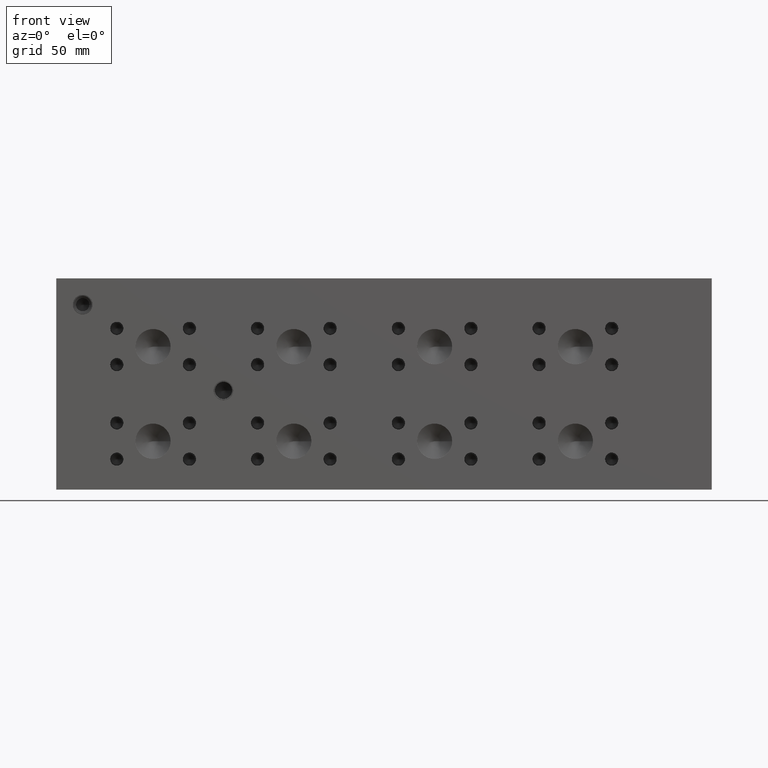
[diagram: clean part render]
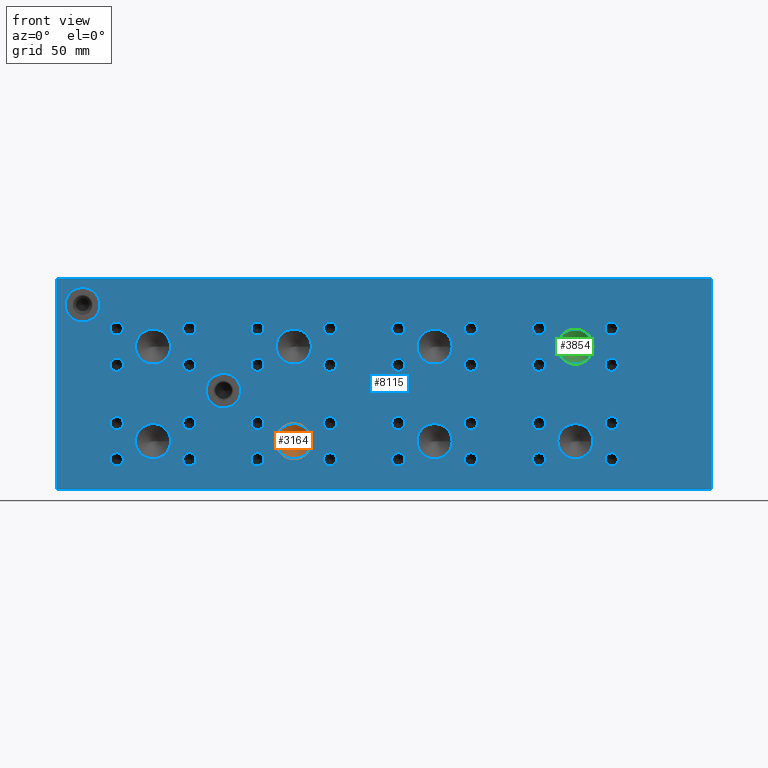
[diagram: same view with three faces highlighted in distinct colors, each labeled with its STEP entity id]
A machine part, front view with three faces highlighted in distinct colors.
Their STEP definitions:

[orange] entity #3164 — the highlighted conical surface has half-angle 60 deg.
#3148=CARTESIAN_POINT('',(171.44999999999999,10.998522600000001,34.924999999999997));
#3149=DIRECTION('',(0.0,-1.0,0.0));
#3150=DIRECTION('',(1.0,0.0,0.0));
#3151=AXIS2_PLACEMENT_3D('',#3148,#3149,#3150);
#3152=CONICAL_SURFACE('',#3151,6.350000000000016,60.000000063301457);
#3153=CARTESIAN_POINT('',(184.14999999999998,7.332348400000001,34.924999999999997));
#3154=VERTEX_POINT('',#3153);
#3155=CARTESIAN_POINT('',(171.44999999999999,7.332348400000001,34.924999999999997));
#3156=DIRECTION('',(0.0,-1.0,0.0));
#3157=DIRECTION('',(1.0,0.0,0.0));
#3158=AXIS2_PLACEMENT_3D('',#3155,#3156,#3157);
#3159=CIRCLE('',#3158,12.699999999999996);
#3160=EDGE_CURVE('',#3154,#3154,#3159,.T.);
#3161=ORIENTED_EDGE('',*,*,#3160,.T.);
#3162=EDGE_LOOP('',(#3161));
#3163=FACE_OUTER_BOUND('',#3162,.T.);
#3164=ADVANCED_FACE('',(#3163),#3152,.F.);

[blue] entity #8115 — the highlighted planar face has unit normal (0, -1, 0).
#1938=CARTESIAN_POINT('',(133.14680000000001,0.0,71.424800000000005));
#1939=VERTEX_POINT('',#1938);
#1940=CARTESIAN_POINT('',(120.65000000000001,0.0,71.424800000000005));
#1941=DIRECTION('',(0.0,1.0,0.0));
#1942=DIRECTION('',(1.0,0.0,0.0));
#1943=AXIS2_PLACEMENT_3D('',#1940,#1941,#1942);
#1944=CIRCLE('',#1943,12.496799999999997);
#1945=EDGE_CURVE('',#1939,#1939,#1944,.T.);
#2135=CARTESIAN_POINT('',(31.546800000000005,0.0,133.35000000000002));
#2136=VERTEX_POINT('',#2135);
#2137=CARTESIAN_POINT('',(19.050000000000004,0.0,133.35000000000002));
#2138=DIRECTION('',(0.0,1.0,0.0));
#2139=DIRECTION('',(1.0,0.0,0.0));
#2140=AXIS2_PLACEMENT_3D('',#2137,#2138,#2139);
#2141=CIRCLE('',#2140,12.4968);
#2142=EDGE_CURVE('',#2136,#2136,#2141,.T.);
#2212=CARTESIAN_POINT('',(405.59990000000005,0.0,21.844000000000001));
#2213=VERTEX_POINT('',#2212);
#2214=CARTESIAN_POINT('',(400.83740000000006,0.0,21.844000000000001));
#2215=DIRECTION('',(0.0,1.0,0.0));
#2216=DIRECTION('',(1.0,0.0,0.0));
#2217=AXIS2_PLACEMENT_3D('',#2214,#2215,#2216);
#2218=CIRCLE('',#2217,4.762500000000003);
#2219=EDGE_CURVE('',#2213,#2213,#2218,.T.);
#2289=CARTESIAN_POINT('',(405.59990000000005,0.0,48.006));
#2290=VERTEX_POINT('',#2289);
#2291=CARTESIAN_POINT('',(400.83740000000006,0.0,48.006));
#2292=DIRECTION('',(0.0,1.0,0.0));
#2293=DIRECTION('',(1.0,0.0,0.0));
#2294=AXIS2_PLACEMENT_3D('',#2291,#2292,#2293);
#2295=CIRCLE('',#2294,4.762500000000003);
#2296=EDGE_CURVE('',#2290,#2290,#2295,.T.);
#2366=CARTESIAN_POINT('',(353.2251,0.0,48.006));
#2367=VERTEX_POINT('',#2366);
#2368=CARTESIAN_POINT('',(348.46260000000001,0.0,48.006));
#2369=DIRECTION('',(0.0,1.0,0.0));
#2370=DIRECTION('',(1.0,0.0,0.0));
#2371=AXIS2_PLACEMENT_3D('',#2368,#2369,#2370);
#2372=CIRCLE('',#2371,4.762500000000003);
#2373=EDGE_CURVE('',#2367,#2367,#2372,.T.);
#2443=CARTESIAN_POINT('',(353.2251,0.0,21.844000000000001));
#2444=VERTEX_POINT('',#2443);
#2445=CARTESIAN_POINT('',(348.46260000000001,0.0,21.844000000000001));
#2446=DIRECTION('',(0.0,1.0,0.0));
#2447=DIRECTION('',(1.0,0.0,0.0));
#2448=AXIS2_PLACEMENT_3D('',#2445,#2446,#2447);
#2449=CIRCLE('',#2448,4.762500000000003);
#2450=EDGE_CURVE('',#2444,#2444,#2449,.T.);
#2480=CARTESIAN_POINT('',(387.35000000000002,0.0,34.924999999999997));
#2481=VERTEX_POINT('',#2480);
#2482=CARTESIAN_POINT('',(374.64999999999998,0.0,34.924999999999997));
#2483=DIRECTION('',(0.0,1.0,0.0));
#2484=DIRECTION('',(1.0,0.0,0.0));
#2485=AXIS2_PLACEMENT_3D('',#2482,#2483,#2484);
#2486=CIRCLE('',#2485,12.700000000000031);
#2487=EDGE_CURVE('',#2481,#2481,#2486,.T.);
#2557=CARTESIAN_POINT('',(303.99989999999997,0.0,21.844000000000001));
#2558=VERTEX_POINT('',#2557);
#2559=CARTESIAN_POINT('',(299.23739999999998,0.0,21.844000000000001));
#2560=DIRECTION('',(0.0,1.0,0.0));
#2561=DIRECTION('',(1.0,0.0,0.0));
#2562=AXIS2_PLACEMENT_3D('',#2559,#2560,#2561);
#2563=CIRCLE('',#2562,4.762500000000003);
#2564=EDGE_CURVE('',#2558,#2558,#2563,.T.);
#2634=CARTESIAN_POINT('',(303.99989999999997,0.0,48.006));
#2635=VERTEX_POINT('',#2634);
#2636=CARTESIAN_POINT('',(299.23739999999998,0.0,48.006));
#2637=DIRECTION('',(0.0,1.0,0.0));
#2638=DIRECTION('',(1.0,0.0,0.0));
#2639=AXIS2_PLACEMENT_3D('',#2636,#2637,#2638);
#2640=CIRCLE('',#2639,4.762500000000003);
#2641=EDGE_CURVE('',#2635,#2635,#2640,.T.);
#2711=CARTESIAN_POINT('',(251.6251,0.0,48.006));
#2712=VERTEX_POINT('',#2711);
#2713=CARTESIAN_POINT('',(246.86260000000001,0.0,48.006));
#2714=DIRECTION('',(0.0,1.0,0.0));
#2715=DIRECTION('',(1.0,0.0,0.0));
#2716=AXIS2_PLACEMENT_3D('',#2713,#2714,#2715);
#2717=CIRCLE('',#2716,4.762500000000003);
#2718=EDGE_CURVE('',#2712,#2712,#2717,.T.);
#2788=CARTESIAN_POINT('',(251.6251,0.0,21.844000000000001));
#2789=VERTEX_POINT('',#2788);
#2790=CARTESIAN_POINT('',(246.86260000000001,0.0,21.844000000000001));
#2791=DIRECTION('',(0.0,1.0,0.0));
#2792=DIRECTION('',(1.0,0.0,0.0));
#2793=AXIS2_PLACEMENT_3D('',#2790,#2791,#2792);
#2794=CIRCLE('',#2793,4.762500000000003);
#2795=EDGE_CURVE('',#2789,#2789,#2794,.T.);
#2825=CARTESIAN_POINT('',(285.75,0.0,34.924999999999997));
#2826=VERTEX_POINT('',#2825);
#2827=CARTESIAN_POINT('',(273.05000000000001,0.0,34.924999999999997));
#2828=DIRECTION('',(0.0,1.0,0.0));
#2829=DIRECTION('',(1.0,0.0,0.0));
#2830=AXIS2_PLACEMENT_3D('',#2827,#2828,#2829);
#2831=CIRCLE('',#2830,12.699999999999996);
#2832=EDGE_CURVE('',#2826,#2826,#2831,.T.);
#2902=CARTESIAN_POINT('',(202.39990000000003,0.0,21.844000000000001));
#2903=VERTEX_POINT('',#2902);
#2904=CARTESIAN_POINT('',(197.63740000000001,0.0,21.844000000000001));
#2905=DIRECTION('',(0.0,1.0,0.0));
#2906=DIRECTION('',(1.0,0.0,0.0));
#2907=AXIS2_PLACEMENT_3D('',#2904,#2905,#2906);
#2908=CIRCLE('',#2907,4.762500000000003);
#2909=EDGE_CURVE('',#2903,#2903,#2908,.T.);
#2979=CARTESIAN_POINT('',(202.40498000000002,0.0,48.006));
#2980=VERTEX_POINT('',#2979);
#2981=CARTESIAN_POINT('',(197.64248000000003,0.0,48.006));
#2982=DIRECTION('',(0.0,1.0,0.0));
#2983=DIRECTION('',(1.0,0.0,0.0));
#2984=AXIS2_PLACEMENT_3D('',#2981,#2982,#2983);
#2985=CIRCLE('',#2984,4.762500000000003);
#2986=EDGE_CURVE('',#2980,#2980,#2985,.T.);
#3056=CARTESIAN_POINT('',(150.02510000000001,0.0,48.006));
#3057=VERTEX_POINT('',#3056);
#3058=CARTESIAN_POINT('',(145.26260000000002,0.0,48.006));
#3059=DIRECTION('',(0.0,1.0,0.0));
#3060=DIRECTION('',(1.0,0.0,0.0));
#3061=AXIS2_PLACEMENT_3D('',#3058,#3059,#3060);
#3062=CIRCLE('',#3061,4.762500000000003);
#3063=EDGE_CURVE('',#3057,#3057,#3062,.T.);
#3133=CARTESIAN_POINT('',(150.02002000000002,0.0,21.844000000000001));
#3134=VERTEX_POINT('',#3133);
#3135=CARTESIAN_POINT('',(145.25752,0.0,21.844000000000001));
#3136=DIRECTION('',(0.0,1.0,0.0));
#3137=DIRECTION('',(1.0,0.0,0.0));
#3138=AXIS2_PLACEMENT_3D('',#3135,#3136,#3137);
#3139=CIRCLE('',#3138,4.762500000000003);
#3140=EDGE_CURVE('',#3134,#3134,#3139,.T.);
#3170=CARTESIAN_POINT('',(184.14999999999998,0.0,34.924999999999997));
#3171=VERTEX_POINT('',#3170);
#3172=CARTESIAN_POINT('',(171.44999999999999,0.0,34.924999999999997));
#3173=DIRECTION('',(0.0,1.0,0.0));
#3174=DIRECTION('',(1.0,0.0,0.0));
#3175=AXIS2_PLACEMENT_3D('',#3172,#3173,#3174);
#3176=CIRCLE('',#3175,12.699999999999996);
#3177=EDGE_CURVE('',#3171,#3171,#3176,.T.);
#3247=CARTESIAN_POINT('',(100.79990000000002,0.0,21.844000000000001));
#3248=VERTEX_POINT('',#3247);
#3249=CARTESIAN_POINT('',(96.037400000000019,0.0,21.844000000000001));
#3250=DIRECTION('',(0.0,1.0,0.0));
#3251=DIRECTION('',(1.0,0.0,0.0));
#3252=AXIS2_PLACEMENT_3D('',#3249,#3250,#3251);
#3253=CIRCLE('',#3252,4.762500000000003);
#3254=EDGE_CURVE('',#3248,#3248,#3253,.T.);
#3324=CARTESIAN_POINT('',(100.80498,0.0,48.006));
#3325=VERTEX_POINT('',#3324);
#3326=CARTESIAN_POINT('',(96.042479999999998,0.0,48.006));
#3327=DIRECTION('',(0.0,1.0,0.0));
#3328=DIRECTION('',(1.0,0.0,0.0));
#3329=AXIS2_PLACEMENT_3D('',#3326,#3327,#3328);
#3330=CIRCLE('',#3329,4.762500000000003);
#3331=EDGE_CURVE('',#3325,#3325,#3330,.T.);
#3401=CARTESIAN_POINT('',(48.4251,0.0,48.006));
#3402=VERTEX_POINT('',#3401);
#3403=CARTESIAN_POINT('',(43.662599999999998,0.0,48.006));
#3404=DIRECTION('',(0.0,1.0,0.0));
#3405=DIRECTION('',(1.0,0.0,0.0));
#3406=AXIS2_PLACEMENT_3D('',#3403,#3404,#3405);
#3407=CIRCLE('',#3406,4.762500000000003);
#3408=EDGE_CURVE('',#3402,#3402,#3407,.T.);
#3478=CARTESIAN_POINT('',(48.420020000000001,0.0,21.844000000000001));
#3479=VERTEX_POINT('',#3478);
#3480=CARTESIAN_POINT('',(43.657519999999998,0.0,21.844000000000001));
#3481=DIRECTION('',(0.0,1.0,0.0));
#3482=DIRECTION('',(1.0,0.0,0.0));
#3483=AXIS2_PLACEMENT_3D('',#3480,#3481,#3482);
#3484=CIRCLE('',#3483,4.762500000000003);
#3485=EDGE_CURVE('',#3479,#3479,#3484,.T.);
#3515=CARTESIAN_POINT('',(82.549999999999983,0.0,34.924999999999997));
#3516=VERTEX_POINT('',#3515);
#3517=CARTESIAN_POINT('',(69.849999999999994,0.0,34.924999999999997));
#3518=DIRECTION('',(0.0,1.0,0.0));
#3519=DIRECTION('',(1.0,0.0,0.0));
#3520=AXIS2_PLACEMENT_3D('',#3517,#3518,#3519);
#3521=CIRCLE('',#3520,12.699999999999996);
#3522=EDGE_CURVE('',#3516,#3516,#3521,.T.);
#3592=CARTESIAN_POINT('',(405.59990000000005,0.0,90.093800000000002));
#3593=VERTEX_POINT('',#3592);
#3594=CARTESIAN_POINT('',(400.83740000000006,0.0,90.093800000000002));
#3595=DIRECTION('',(0.0,1.0,0.0));
#3596=DIRECTION('',(1.0,0.0,0.0));
#3597=AXIS2_PLACEMENT_3D('',#3594,#3595,#3596);
#3598=CIRCLE('',#3597,4.762500000000003);
#3599=EDGE_CURVE('',#3593,#3593,#3598,.T.);
#3669=CARTESIAN_POINT('',(405.59990000000005,0.0,116.25579999999999));
#3670=VERTEX_POINT('',#3669);
#3671=CARTESIAN_POINT('',(400.83740000000006,0.0,116.25579999999999));
#3672=DIRECTION('',(0.0,1.0,0.0));
#3673=DIRECTION('',(1.0,0.0,0.0));
#3674=AXIS2_PLACEMENT_3D('',#3671,#3672,#3673);
#3675=CIRCLE('',#3674,4.762500000000003);
#3676=EDGE_CURVE('',#3670,#3670,#3675,.T.);
#3746=CARTESIAN_POINT('',(353.2251,0.0,116.25579999999999));
#3747=VERTEX_POINT('',#3746);
#3748=CARTESIAN_POINT('',(348.46260000000001,0.0,116.25579999999999));
#3749=DIRECTION('',(0.0,1.0,0.0));
#3750=DIRECTION('',(1.0,0.0,0.0));
#3751=AXIS2_PLACEMENT_3D('',#3748,#3749,#3750);
#3752=CIRCLE('',#3751,4.762500000000003);
#3753=EDGE_CURVE('',#3747,#3747,#3752,.T.);
#3823=CARTESIAN_POINT('',(353.2251,0.0,90.093800000000002));
#3824=VERTEX_POINT('',#3823);
#3825=CARTESIAN_POINT('',(348.46260000000001,0.0,90.093800000000002));
#3826=DIRECTION('',(0.0,1.0,0.0));
#3827=DIRECTION('',(1.0,0.0,0.0));
#3828=AXIS2_PLACEMENT_3D('',#3825,#3826,#3827);
#3829=CIRCLE('',#3828,4.762500000000003);
#3830=EDGE_CURVE('',#3824,#3824,#3829,.T.);
#3860=CARTESIAN_POINT('',(387.35000000000002,0.0,103.17480000000002));
#3861=VERTEX_POINT('',#3860);
#3862=CARTESIAN_POINT('',(374.64999999999998,0.0,103.17480000000002));
#3863=DIRECTION('',(0.0,1.0,0.0));
#3864=DIRECTION('',(1.0,0.0,0.0));
#3865=AXIS2_PLACEMENT_3D('',#3862,#3863,#3864);
#3866=CIRCLE('',#3865,12.700000000000031);
#3867=EDGE_CURVE('',#3861,#3861,#3866,.T.);
#3937=CARTESIAN_POINT('',(303.99989999999997,0.0,90.093800000000002));
#3938=VERTEX_POINT('',#3937);
#3939=CARTESIAN_POINT('',(299.23739999999998,0.0,90.093800000000002));
#3940=DIRECTION('',(0.0,1.0,0.0));
#3941=DIRECTION('',(1.0,0.0,0.0));
#3942=AXIS2_PLACEMENT_3D('',#3939,#3940,#3941);
#3943=CIRCLE('',#3942,4.762500000000003);
#3944=EDGE_CURVE('',#3938,#3938,#3943,.T.);
#4014=CARTESIAN_POINT('',(303.99989999999997,0.0,116.25579999999999));
#4015=VERTEX_POINT('',#4014);
#4016=CARTESIAN_POINT('',(299.23739999999998,0.0,116.25579999999999));
#4017=DIRECTION('',(0.0,1.0,0.0));
#4018=DIRECTION('',(1.0,0.0,0.0));
#4019=AXIS2_PLACEMENT_3D('',#4016,#4017,#4018);
#4020=CIRCLE('',#4019,4.762500000000003);
#4021=EDGE_CURVE('',#4015,#4015,#4020,.T.);
#4091=CARTESIAN_POINT('',(251.6251,0.0,116.25579999999999));
#4092=VERTEX_POINT('',#4091);
#4093=CARTESIAN_POINT('',(246.86260000000001,0.0,116.25579999999999));
#4094=DIRECTION('',(0.0,1.0,0.0));
#4095=DIRECTION('',(1.0,0.0,0.0));
#4096=AXIS2_PLACEMENT_3D('',#4093,#4094,#4095);
#4097=CIRCLE('',#4096,4.762500000000003);
#4098=EDGE_CURVE('',#4092,#4092,#4097,.T.);
#4168=CARTESIAN_POINT('',(251.6251,0.0,90.093800000000002));
#4169=VERTEX_POINT('',#4168);
#4170=CARTESIAN_POINT('',(246.86260000000001,0.0,90.093800000000002));
#4171=DIRECTION('',(0.0,1.0,0.0));
#4172=DIRECTION('',(1.0,0.0,0.0));
#4173=AXIS2_PLACEMENT_3D('',#4170,#4171,#4172);
#4174=CIRCLE('',#4173,4.762500000000003);
#4175=EDGE_CURVE('',#4169,#4169,#4174,.T.);
#4205=CARTESIAN_POINT('',(285.75,0.0,103.17480000000002));
#4206=VERTEX_POINT('',#4205);
#4207=CARTESIAN_POINT('',(273.05000000000001,0.0,103.17480000000002));
#4208=DIRECTION('',(0.0,1.0,0.0));
#4209=DIRECTION('',(1.0,0.0,0.0));
#4210=AXIS2_PLACEMENT_3D('',#4207,#4208,#4209);
#4211=CIRCLE('',#4210,12.699999999999996);
#4212=EDGE_CURVE('',#4206,#4206,#4211,.T.);
#4282=CARTESIAN_POINT('',(202.39990000000003,0.0,90.093800000000002));
#4283=VERTEX_POINT('',#4282);
#4284=CARTESIAN_POINT('',(197.63740000000001,0.0,90.093800000000002));
#4285=DIRECTION('',(0.0,1.0,0.0));
#4286=DIRECTION('',(1.0,0.0,0.0));
#4287=AXIS2_PLACEMENT_3D('',#4284,#4285,#4286);
#4288=CIRCLE('',#4287,4.762500000000003);
#4289=EDGE_CURVE('',#4283,#4283,#4288,.T.);
#4359=CARTESIAN_POINT('',(202.40498000000002,0.0,116.25579999999999));
#4360=VERTEX_POINT('',#4359);
#4361=CARTESIAN_POINT('',(197.64248000000003,0.0,116.25579999999999));
#4362=DIRECTION('',(0.0,1.0,0.0));
#4363=DIRECTION('',(1.0,0.0,0.0));
#4364=AXIS2_PLACEMENT_3D('',#4361,#4362,#4363);
#4365=CIRCLE('',#4364,4.762500000000003);
#4366=EDGE_CURVE('',#4360,#4360,#4365,.T.);
#4436=CARTESIAN_POINT('',(150.02510000000001,0.0,116.25579999999999));
#4437=VERTEX_POINT('',#4436);
#4438=CARTESIAN_POINT('',(145.26260000000002,0.0,116.25579999999999));
#4439=DIRECTION('',(0.0,1.0,0.0));
#4440=DIRECTION('',(1.0,0.0,0.0));
#4441=AXIS2_PLACEMENT_3D('',#4438,#4439,#4440);
#4442=CIRCLE('',#4441,4.762500000000003);
#4443=EDGE_CURVE('',#4437,#4437,#4442,.T.);
#4513=CARTESIAN_POINT('',(150.02002000000002,0.0,90.093800000000002));
#4514=VERTEX_POINT('',#4513);
#4515=CARTESIAN_POINT('',(145.25752,0.0,90.093800000000002));
#4516=DIRECTION('',(0.0,1.0,0.0));
#4517=DIRECTION('',(1.0,0.0,0.0));
#4518=AXIS2_PLACEMENT_3D('',#4515,#4516,#4517);
#4519=CIRCLE('',#4518,4.762500000000003);
#4520=EDGE_CURVE('',#4514,#4514,#4519,.T.);
#4550=CARTESIAN_POINT('',(184.14999999999998,0.0,103.17480000000002));
#4551=VERTEX_POINT('',#4550);
#4552=CARTESIAN_POINT('',(171.44999999999999,0.0,103.17480000000002));
#4553=DIRECTION('',(0.0,1.0,0.0));
#4554=DIRECTION('',(1.0,0.0,0.0));
#4555=AXIS2_PLACEMENT_3D('',#4552,#4553,#4554);
#4556=CIRCLE('',#4555,12.699999999999996);
#4557=EDGE_CURVE('',#4551,#4551,#4556,.T.);
#4627=CARTESIAN_POINT('',(100.79990000000002,0.0,90.093800000000002));
#4628=VERTEX_POINT('',#4627);
#4629=CARTESIAN_POINT('',(96.037400000000019,0.0,90.093800000000002));
#4630=DIRECTION('',(0.0,1.0,0.0));
#4631=DIRECTION('',(1.0,0.0,0.0));
#4632=AXIS2_PLACEMENT_3D('',#4629,#4630,#4631);
#4633=CIRCLE('',#4632,4.762500000000003);
#4634=EDGE_CURVE('',#4628,#4628,#4633,.T.);
#4704=CARTESIAN_POINT('',(100.80498,0.0,116.25579999999999));
#4705=VERTEX_POINT('',#4704);
#4706=CARTESIAN_POINT('',(96.042479999999998,0.0,116.25579999999999));
#4707=DIRECTION('',(0.0,1.0,0.0));
#4708=DIRECTION('',(1.0,0.0,0.0));
#4709=AXIS2_PLACEMENT_3D('',#4706,#4707,#4708);
#4710=CIRCLE('',#4709,4.762500000000003);
#4711=EDGE_CURVE('',#4705,#4705,#4710,.T.);
#4781=CARTESIAN_POINT('',(48.4251,0.0,116.25579999999999));
#4782=VERTEX_POINT('',#4781);
#4783=CARTESIAN_POINT('',(43.662599999999998,0.0,116.25579999999999));
#4784=DIRECTION('',(0.0,1.0,0.0));
#4785=DIRECTION('',(1.0,0.0,0.0));
#4786=AXIS2_PLACEMENT_3D('',#4783,#4784,#4785);
#4787=CIRCLE('',#4786,4.762500000000003);
#4788=EDGE_CURVE('',#4782,#4782,#4787,.T.);
#4858=CARTESIAN_POINT('',(48.420020000000001,0.0,90.093800000000002));
#4859=VERTEX_POINT('',#4858);
#4860=CARTESIAN_POINT('',(43.657519999999998,0.0,90.093800000000002));
#4861=DIRECTION('',(0.0,1.0,0.0));
#4862=DIRECTION('',(1.0,0.0,0.0));
#4863=AXIS2_PLACEMENT_3D('',#4860,#4861,#4862);
#4864=CIRCLE('',#4863,4.762500000000003);
#4865=EDGE_CURVE('',#4859,#4859,#4864,.T.);
#4895=CARTESIAN_POINT('',(82.549999999999983,0.0,103.17480000000002));
#4896=VERTEX_POINT('',#4895);
#4897=CARTESIAN_POINT('',(69.849999999999994,0.0,103.17480000000002));
#4898=DIRECTION('',(0.0,1.0,0.0));
#4899=DIRECTION('',(1.0,0.0,0.0));
#4900=AXIS2_PLACEMENT_3D('',#4897,#4898,#4899);
#4901=CIRCLE('',#4900,12.699999999999996);
#4902=EDGE_CURVE('',#4896,#4896,#4901,.T.);
#7799=CARTESIAN_POINT('',(0.0,0.0,152.40000000000003));
#7800=VERTEX_POINT('',#7799);
#7817=CARTESIAN_POINT('',(0.0,0.0,0.0));
#7818=VERTEX_POINT('',#7817);
#7825=CARTESIAN_POINT('',(0.0,0.0,0.0));
#7826=DIRECTION('',(0.0,0.0,1.0));
#7827=VECTOR('',#7826,152.40000000000003);
#7828=LINE('',#7825,#7827);
#7829=EDGE_CURVE('',#7818,#7800,#7828,.T.);
#7906=CARTESIAN_POINT('',(473.07500000000005,0.0,152.40000000000003));
#7907=VERTEX_POINT('',#7906);
#7914=CARTESIAN_POINT('',(473.07500000000005,0.0,0.0));
#7915=VERTEX_POINT('',#7914);
#7916=CARTESIAN_POINT('',(473.07500000000005,0.0,0.0));
#7917=DIRECTION('',(0.0,0.0,1.0));
#7918=VECTOR('',#7917,152.40000000000003);
#7919=LINE('',#7916,#7918);
#7920=EDGE_CURVE('',#7915,#7907,#7919,.T.);
#7968=CARTESIAN_POINT('',(473.07500000000005,0.0,0.0));
#7969=DIRECTION('',(0.0,-1.0,0.0));
#7970=DIRECTION('',(0.0,0.0,-1.0));
#7971=AXIS2_PLACEMENT_3D('',#7968,#7969,#7970);
#7972=PLANE('',#7971);
#7973=CARTESIAN_POINT('',(473.07500000000005,0.0,152.40000000000003));
#7974=DIRECTION('',(-1.0,0.0,0.0));
#7975=VECTOR('',#7974,473.07500000000005);
#7976=LINE('',#7973,#7975);
#7977=EDGE_CURVE('',#7907,#7800,#7976,.T.);
#7978=ORIENTED_EDGE('',*,*,#7977,.T.);
#7979=ORIENTED_EDGE('',*,*,#7829,.F.);
#7980=CARTESIAN_POINT('',(0.0,0.0,0.0));
#7981=DIRECTION('',(1.0,0.0,0.0));
#7982=VECTOR('',#7981,473.07500000000005);
#7983=LINE('',#7980,#7982);
#7984=EDGE_CURVE('',#7818,#7915,#7983,.T.);
#7985=ORIENTED_EDGE('',*,*,#7984,.T.);
#7986=ORIENTED_EDGE('',*,*,#7920,.T.);
#7987=EDGE_LOOP('',(#7978,#7979,#7985,#7986));
#7988=FACE_OUTER_BOUND('',#7987,.T.);
#7989=ORIENTED_EDGE('',*,*,#1945,.T.);
#7990=EDGE_LOOP('',(#7989));
#7991=FACE_BOUND('',#7990,.T.);
#7992=ORIENTED_EDGE('',*,*,#2142,.T.);
#7993=EDGE_LOOP('',(#7992));
#7994=FACE_BOUND('',#7993,.T.);
#7995=ORIENTED_EDGE('',*,*,#2219,.T.);
#7996=EDGE_LOOP('',(#7995));
#7997=FACE_BOUND('',#7996,.T.);
#7998=ORIENTED_EDGE('',*,*,#2296,.T.);
#7999=EDGE_LOOP('',(#7998));
#8000=FACE_BOUND('',#7999,.T.);
#8001=ORIENTED_EDGE('',*,*,#2373,.T.);
#8002=EDGE_LOOP('',(#8001));
#8003=FACE_BOUND('',#8002,.T.);
#8004=ORIENTED_EDGE('',*,*,#2450,.T.);
#8005=EDGE_LOOP('',(#8004));
#8006=FACE_BOUND('',#8005,.T.);
#8007=ORIENTED_EDGE('',*,*,#2487,.T.);
#8008=EDGE_LOOP('',(#8007));
#8009=FACE_BOUND('',#8008,.T.);
#8010=ORIENTED_EDGE('',*,*,#2564,.T.);
#8011=EDGE_LOOP('',(#8010));
#8012=FACE_BOUND('',#8011,.T.);
#8013=ORIENTED_EDGE('',*,*,#2641,.T.);
#8014=EDGE_LOOP('',(#8013));
#8015=FACE_BOUND('',#8014,.T.);
#8016=ORIENTED_EDGE('',*,*,#2718,.T.);
#8017=EDGE_LOOP('',(#8016));
#8018=FACE_BOUND('',#8017,.T.);
#8019=ORIENTED_EDGE('',*,*,#2795,.T.);
#8020=EDGE_LOOP('',(#8019));
#8021=FACE_BOUND('',#8020,.T.);
#8022=ORIENTED_EDGE('',*,*,#2832,.T.);
#8023=EDGE_LOOP('',(#8022));
#8024=FACE_BOUND('',#8023,.T.);
#8025=ORIENTED_EDGE('',*,*,#2909,.T.);
#8026=EDGE_LOOP('',(#8025));
#8027=FACE_BOUND('',#8026,.T.);
#8028=ORIENTED_EDGE('',*,*,#2986,.T.);
#8029=EDGE_LOOP('',(#8028));
#8030=FACE_BOUND('',#8029,.T.);
#8031=ORIENTED_EDGE('',*,*,#3063,.T.);
#8032=EDGE_LOOP('',(#8031));
#8033=FACE_BOUND('',#8032,.T.);
#8034=ORIENTED_EDGE('',*,*,#3140,.T.);
#8035=EDGE_LOOP('',(#8034));
#8036=FACE_BOUND('',#8035,.T.);
#8037=ORIENTED_EDGE('',*,*,#3177,.T.);
#8038=EDGE_LOOP('',(#8037));
#8039=FACE_BOUND('',#8038,.T.);
#8040=ORIENTED_EDGE('',*,*,#3254,.T.);
#8041=EDGE_LOOP('',(#8040));
#8042=FACE_BOUND('',#8041,.T.);
#8043=ORIENTED_EDGE('',*,*,#3331,.T.);
#8044=EDGE_LOOP('',(#8043));
#8045=FACE_BOUND('',#8044,.T.);
#8046=ORIENTED_EDGE('',*,*,#3408,.T.);
#8047=EDGE_LOOP('',(#8046));
#8048=FACE_BOUND('',#8047,.T.);
#8049=ORIENTED_EDGE('',*,*,#3485,.T.);
#8050=EDGE_LOOP('',(#8049));
#8051=FACE_BOUND('',#8050,.T.);
#8052=ORIENTED_EDGE('',*,*,#3522,.T.);
#8053=EDGE_LOOP('',(#8052));
#8054=FACE_BOUND('',#8053,.T.);
#8055=ORIENTED_EDGE('',*,*,#3599,.T.);
#8056=EDGE_LOOP('',(#8055));
#8057=FACE_BOUND('',#8056,.T.);
#8058=ORIENTED_EDGE('',*,*,#3676,.T.);
#8059=EDGE_LOOP('',(#8058));
#8060=FACE_BOUND('',#8059,.T.);
#8061=ORIENTED_EDGE('',*,*,#3753,.T.);
#8062=EDGE_LOOP('',(#8061));
#8063=FACE_BOUND('',#8062,.T.);
#8064=ORIENTED_EDGE('',*,*,#3830,.T.);
#8065=EDGE_LOOP('',(#8064));
#8066=FACE_BOUND('',#8065,.T.);
#8067=ORIENTED_EDGE('',*,*,#3867,.T.);
#8068=EDGE_LOOP('',(#8067));
#8069=FACE_BOUND('',#8068,.T.);
#8070=ORIENTED_EDGE('',*,*,#3944,.T.);
#8071=EDGE_LOOP('',(#8070));
#8072=FACE_BOUND('',#8071,.T.);
#8073=ORIENTED_EDGE('',*,*,#4021,.T.);
#8074=EDGE_LOOP('',(#8073));
#8075=FACE_BOUND('',#8074,.T.);
#8076=ORIENTED_EDGE('',*,*,#4098,.T.);
#8077=EDGE_LOOP('',(#8076));
#8078=FACE_BOUND('',#8077,.T.);
#8079=ORIENTED_EDGE('',*,*,#4175,.T.);
#8080=EDGE_LOOP('',(#8079));
#8081=FACE_BOUND('',#8080,.T.);
#8082=ORIENTED_EDGE('',*,*,#4212,.T.);
#8083=EDGE_LOOP('',(#8082));
#8084=FACE_BOUND('',#8083,.T.);
#8085=ORIENTED_EDGE('',*,*,#4289,.T.);
#8086=EDGE_LOOP('',(#8085));
#8087=FACE_BOUND('',#8086,.T.);
#8088=ORIENTED_EDGE('',*,*,#4366,.T.);
#8089=EDGE_LOOP('',(#8088));
#8090=FACE_BOUND('',#8089,.T.);
#8091=ORIENTED_EDGE('',*,*,#4443,.T.);
#8092=EDGE_LOOP('',(#8091));
#8093=FACE_BOUND('',#8092,.T.);
#8094=ORIENTED_EDGE('',*,*,#4520,.T.);
#8095=EDGE_LOOP('',(#8094));
#8096=FACE_BOUND('',#8095,.T.);
#8097=ORIENTED_EDGE('',*,*,#4557,.T.);
#8098=EDGE_LOOP('',(#8097));
#8099=FACE_BOUND('',#8098,.T.);
#8100=ORIENTED_EDGE('',*,*,#4634,.T.);
#8101=EDGE_LOOP('',(#8100));
#8102=FACE_BOUND('',#8101,.T.);
#8103=ORIENTED_EDGE('',*,*,#4711,.T.);
#8104=EDGE_LOOP('',(#8103));
#8105=FACE_BOUND('',#8104,.T.);
#8106=ORIENTED_EDGE('',*,*,#4788,.T.);
#8107=EDGE_LOOP('',(#8106));
#8108=FACE_BOUND('',#8107,.T.);
#8109=ORIENTED_EDGE('',*,*,#4865,.T.);
#8110=EDGE_LOOP('',(#8109));
#8111=FACE_BOUND('',#8110,.T.);
#8112=ORIENTED_EDGE('',*,*,#4902,.T.);
#8113=EDGE_LOOP('',(#8112));
#8114=FACE_BOUND('',#8113,.T.);
#8115=ADVANCED_FACE('',(#7988,#7991,#7994,#7997,#8000,#8003,#8006,#8009,#8012,#8015,#8018,#8021,#8024,#8027,#8030,#8033,#8036,#8039,#8042,#8045,#8048,#8051,#8054,#8057,#8060,#8063,#8066,#8069,#8072,#8075,#8078,#8081,#8084,#8087,#8090,#8093,#8096,#8099,#8102,#8105,#8108,#8111,#8114),#7972,.T.);

[green] entity #3854 — the highlighted conical surface has half-angle 60 deg.
#3838=CARTESIAN_POINT('',(374.64999999999998,10.998522600000001,103.17480000000002));
#3839=DIRECTION('',(0.0,-1.0,0.0));
#3840=DIRECTION('',(1.0,0.0,0.0));
#3841=AXIS2_PLACEMENT_3D('',#3838,#3839,#3840);
#3842=CONICAL_SURFACE('',#3841,6.34999999999998,60.000000063301314);
#3843=CARTESIAN_POINT('',(387.35000000000002,7.332348400000001,103.17480000000002));
#3844=VERTEX_POINT('',#3843);
#3845=CARTESIAN_POINT('',(374.64999999999998,7.332348400000001,103.17480000000002));
#3846=DIRECTION('',(0.0,-1.0,0.0));
#3847=DIRECTION('',(1.0,0.0,0.0));
#3848=AXIS2_PLACEMENT_3D('',#3845,#3846,#3847);
#3849=CIRCLE('',#3848,12.700000000000031);
#3850=EDGE_CURVE('',#3844,#3844,#3849,.T.);
#3851=ORIENTED_EDGE('',*,*,#3850,.T.);
#3852=EDGE_LOOP('',(#3851));
#3853=FACE_OUTER_BOUND('',#3852,.T.);
#3854=ADVANCED_FACE('',(#3853),#3842,.F.);